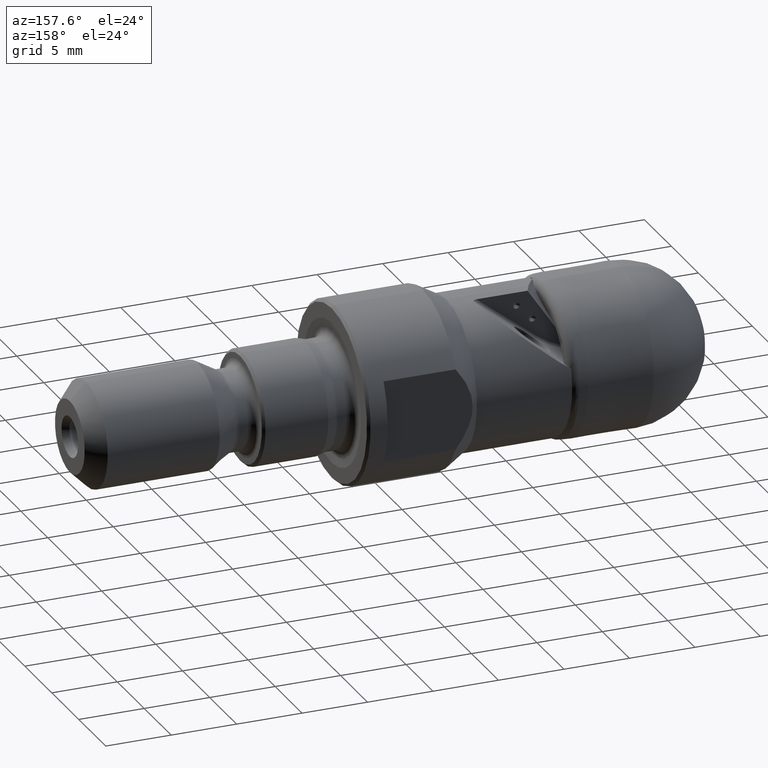
[diagram: clean part render]
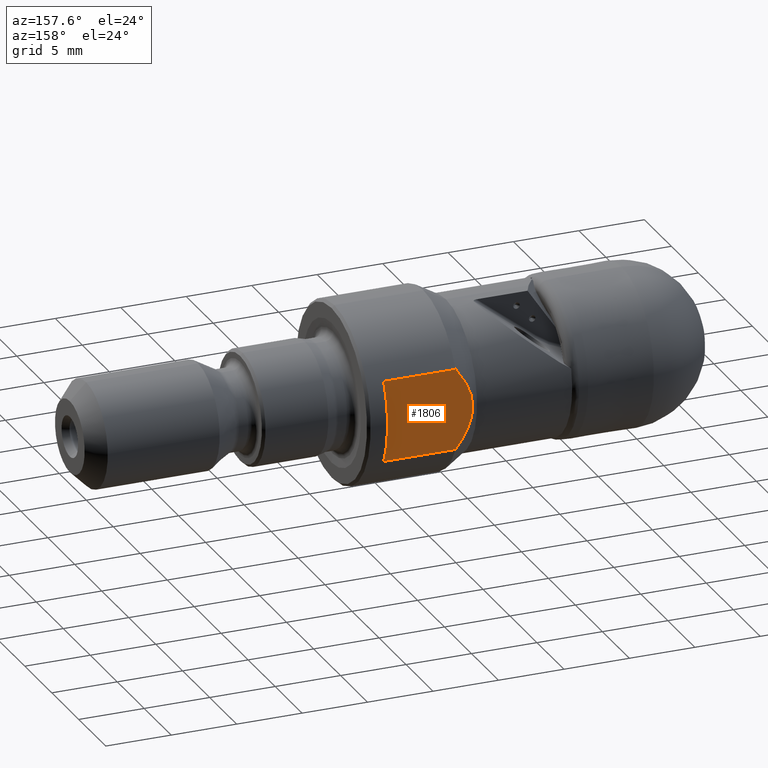
[diagram: same view with one face highlighted and labeled with its STEP entity id]
A machine part, auxiliary view. The second image highlights one B-rep face of the part: STEP entity #1806.
In plain terms, the highlighted planar face has unit normal (0, -1, 0).
Its self-contained STEP definition (entity closure, byte-faithful):
#143 = CARTESIAN_POINT ( 'NONE',  ( 18.81688218000000035, 6.000000000000000000, -10.00000000000000000 ) ) ;
#218 = EDGE_CURVE ( 'NONE', #342, #3539, #2677, .T. ) ;
#283 = CARTESIAN_POINT ( 'NONE',  ( 20.18609404461984980, 5.999999999999999112, -1.118110142131102158 ) ) ;
#303 = CARTESIAN_POINT ( 'NONE',  ( 20.64083145455403923, 6.000000000000000888, -2.167533519914921936 ) ) ;
#324 = EDGE_CURVE ( 'NONE', #3539, #2059, #531, .T. ) ;
#342 = VERTEX_POINT ( 'NONE', #1435 ) ;
#358 = VERTEX_POINT ( 'NONE', #629 ) ;
#422 = CARTESIAN_POINT ( 'NONE',  ( -4.762142644779060241, 6.000000000000000000, 3.092329219213244773 ) ) ;
#461 = CARTESIAN_POINT ( 'NONE',  ( 26.81688218000000035, 6.000000000000000000, -10.00000000000000000 ) ) ;
#531 = LINE ( 'NONE', #1522, #2328 ) ;
#543 = CARTESIAN_POINT ( 'NONE',  ( 20.18996829473244503, 6.000000000000000888, 1.130885837600213772 ) ) ;
#551 = EDGE_CURVE ( 'NONE', #358, #342, #2241, .T. ) ;
#568 = DIRECTION ( 'NONE',  ( 1.000000000000000000, 0.0000000000000000000, 0.0000000000000000000 ) ) ;
#585 = CARTESIAN_POINT ( 'NONE',  ( 21.14146459376610920, 6.000000000000000888, 2.871258842060817607 ) ) ;
#603 = CARTESIAN_POINT ( 'NONE',  ( 20.52483762078982821, 6.000000000000000888, 1.913073005935032045 ) ) ;
#629 = CARTESIAN_POINT ( 'NONE',  ( 26.81688218000000035, 6.000000000000000000, 3.092329219213244329 ) ) ;
#784 = CARTESIAN_POINT ( 'NONE',  ( 21.31688218000000035, 6.000000000000000000, 3.092329219213244329 ) ) ;
#907 = ORIENTED_EDGE ( 'NONE', *, *, #218, .F. ) ;
#1158 = CARTESIAN_POINT ( 'NONE',  ( 20.96415721726403092, 6.000000000000000888, -2.647806852800417499 ) ) ;
#1352 = EDGE_CURVE ( 'NONE', #2059, #358, #2576, .T. ) ;
#1391 = DIRECTION ( 'NONE',  ( -0.0000000000000000000, -0.0000000000000000000, 1.000000000000000000 ) ) ;
#1434 = EDGE_LOOP ( 'NONE', ( #2078, #1620, #907, #3023 ) ) ;
#1435 = CARTESIAN_POINT ( 'NONE',  ( 21.31688218000000035, 6.000000000000000000, 3.092329219213244329 ) ) ;
#1478 = CARTESIAN_POINT ( 'NONE',  ( 20.28251153315819622, 6.000000000000001776, -1.385706096711979862 ) ) ;
#1522 = CARTESIAN_POINT ( 'NONE',  ( -4.762142644779060241, 6.000000000000000000, -3.092329219213244773 ) ) ;
#1620 = ORIENTED_EDGE ( 'NONE', *, *, #324, .F. ) ;
#1735 = CARTESIAN_POINT ( 'NONE',  ( 20.66527570700850802, 6.000000000000001776, 2.162166079808715224 ) ) ;
#1793 = CARTESIAN_POINT ( 'NONE',  ( 20.28757705902901520, 5.999999999999999112, 1.398080855287789470 ) ) ;
#1806 = ADVANCED_FACE ( 'NONE', ( #3525 ), #2277, .F. ) ;
#1812 = CARTESIAN_POINT ( 'NONE',  ( 20.01845294817312038, 6.000000000000001776, 0.2907782379734634159 ) ) ;
#2059 = VERTEX_POINT ( 'NONE', #2319 ) ;
#2078 = ORIENTED_EDGE ( 'NONE', *, *, #1352, .F. ) ;
#2241 = LINE ( 'NONE', #422, #3399 ) ;
#2277 = PLANE ( 'NONE',  #2411 ) ;
#2319 = CARTESIAN_POINT ( 'NONE',  ( 26.81688218000000035, 6.000000000000000000, -3.092329219213244773 ) ) ;
#2328 = VECTOR ( 'NONE', #568, 1000.000000000000000 ) ;
#2342 = VECTOR ( 'NONE', #1391, 1000.000000000000000 ) ;
#2411 = AXIS2_PLACEMENT_3D ( 'NONE', #143, #3766, #2850 ) ;
#2576 = LINE ( 'NONE', #461, #2342 ) ;
#2677 = B_SPLINE_CURVE_WITH_KNOTS ( 'NONE', 3,
 ( #784, #585, #2955, #1735, #603, #1793, #543, #2992, #1812, #2727, #3915, #283, #1478, #303, #1158, #3876 ),
 .UNSPECIFIED., .F., .F.,
 ( 4, 2, 2, 2, 2, 2, 2, 4 ),
 ( 0.003153543802571788946, 0.003998041280054037173, 0.004842538757536284967, 0.005687036235018532761, 0.006531533712500780554, 0.007376031189983027481, 0.008220528667465277009, 0.009909523622429776066 ),
 .UNSPECIFIED. ) ;
#2727 = CARTESIAN_POINT ( 'NONE',  ( 20.01725078035686067, 6.000000000000001776, -0.2760853391396117518 ) ) ;
#2845 = CARTESIAN_POINT ( 'NONE',  ( 21.31688218000000035, 6.000000000000000000, -3.092329219213244773 ) ) ;
#2850 = DIRECTION ( 'NONE',  ( 0.0000000000000000000, -0.0000000000000000000, -1.000000000000000000 ) ) ;
#2955 = CARTESIAN_POINT ( 'NONE',  ( 20.97448596729046599, 6.000000000000000888, 2.642454479883163287 ) ) ;
#2992 = CARTESIAN_POINT ( 'NONE',  ( 20.05398083426106126, 6.000000000000000000, 0.5721133810930368879 ) ) ;
#3023 = ORIENTED_EDGE ( 'NONE', *, *, #551, .F. ) ;
#3200 = DIRECTION ( 'NONE',  ( -1.000000000000000000, -0.0000000000000000000, -0.0000000000000000000 ) ) ;
#3399 = VECTOR ( 'NONE', #3200, 1000.000000000000000 ) ;
#3525 = FACE_OUTER_BOUND ( 'NONE', #1434, .T. ) ;
#3539 = VERTEX_POINT ( 'NONE', #2845 ) ;
#3766 = DIRECTION ( 'NONE',  ( 0.0000000000000000000, -1.000000000000000000, 0.0000000000000000000 ) ) ;
#3876 = CARTESIAN_POINT ( 'NONE',  ( 21.31688218000000035, 6.000000000000000000, -3.092329219213244773 ) ) ;
#3915 = CARTESIAN_POINT ( 'NONE',  ( 20.05299205312996946, 6.000000000000000888, -0.5647905970445072921 ) ) ;